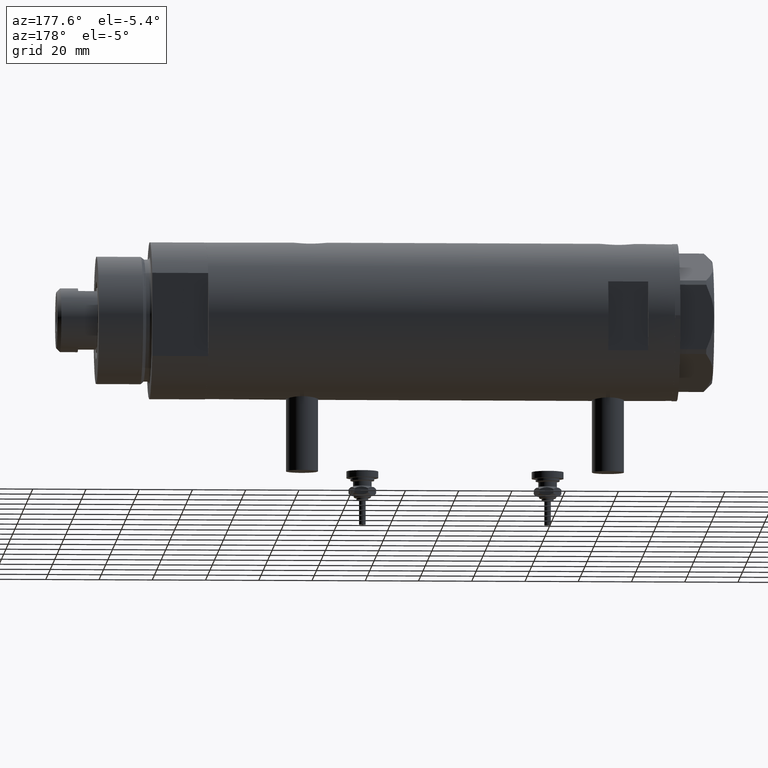
[diagram: clean part render]
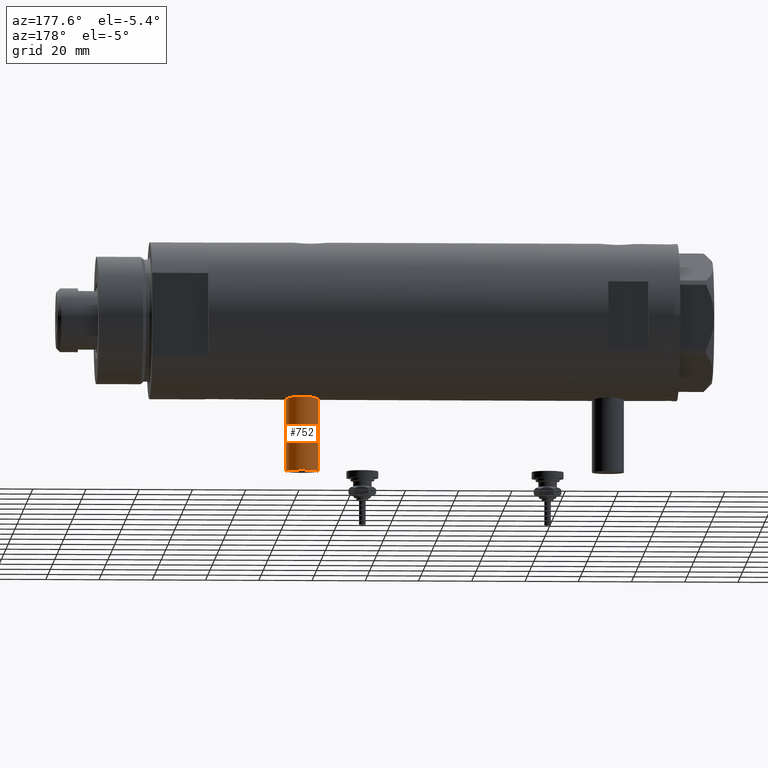
[diagram: same view with one face highlighted and labeled with its STEP entity id]
A machine part, auxiliary view. The second image highlights one B-rep face of the part: STEP entity #752.
In plain terms, the highlighted cylindrical surface (edge-blend (fillet) strip) has radius 6 mm, axis along (0, 0, 1).
Its self-contained STEP definition (entity closure, byte-faithful):
#12 = DIRECTION ( 'NONE',  ( 1.000000000000000000, -0.000000000000000000, -0.000000000000000000 ) ) ;
#195 = CARTESIAN_POINT ( 'NONE',  ( -28.30000000000000071, 7.347880794884119736E-16, -45.29999999999999005 ) ) ;
#443 = CARTESIAN_POINT ( 'NONE',  ( -56.60000000000000142, 0.000000000000000000, -51.29999999999999716 ) ) ;
#530 = CARTESIAN_POINT ( 'NONE',  ( -56.60000000000000142, 0.000000000000000000, -51.29999999999999716 ) ) ;
#545 = AXIS2_PLACEMENT_3D ( 'NONE', #443, #1755, #3621 ) ;
#589 = DIRECTION ( 'NONE',  ( -1.000000000000000000, 0.000000000000000000, 0.000000000000000000 ) ) ;
#636 = EDGE_LOOP ( 'NONE', ( #4714, #3597, #3463, #3474 ) ) ;
#752 = ADVANCED_FACE ( 'NONE', ( #1361 ), #4194, .T. ) ;
#878 = CARTESIAN_POINT ( 'NONE',  ( -56.60000000000000142, 0.000000000000000000, -57.30000000000000426 ) ) ;
#886 = DIRECTION ( 'NONE',  ( 0.000000000000000000, 0.000000000000000000, -1.000000000000000000 ) ) ;
#1117 = CARTESIAN_POINT ( 'NONE',  ( -28.30000000000000071, 0.000000000000000000, -57.30000000000000426 ) ) ;
#1361 = FACE_OUTER_BOUND ( 'NONE', #636, .T. ) ;
#1379 = DIRECTION ( 'NONE',  ( 1.000000000000000000, -0.000000000000000000, -0.000000000000000000 ) ) ;
#1432 = VERTEX_POINT ( 'NONE', #5374 ) ;
#1446 = LINE ( 'NONE', #3641, #4109 ) ;
#1755 = DIRECTION ( 'NONE',  ( -1.000000000000000000, 0.000000000000000000, 0.000000000000000000 ) ) ;
#2258 = CARTESIAN_POINT ( 'NONE',  ( -56.60000000000000142, 0.000000000000000000, -57.30000000000000426 ) ) ;
#2361 = EDGE_CURVE ( 'NONE', #4700, #4296, #4844, .T. ) ;
#2713 = AXIS2_PLACEMENT_3D ( 'NONE', #530, #12, #886 ) ;
#2962 = VECTOR ( 'NONE', #4068, 1000.000000000000000 ) ;
#3401 = CARTESIAN_POINT ( 'NONE',  ( -28.30000000000000071, 0.000000000000000000, -51.29999999999999716 ) ) ;
#3463 = ORIENTED_EDGE ( 'NONE', *, *, #2361, .T. ) ;
#3474 = ORIENTED_EDGE ( 'NONE', *, *, #4815, .F. ) ;
#3531 = EDGE_CURVE ( 'NONE', #1432, #3854, #5333, .T. ) ;
#3597 = ORIENTED_EDGE ( 'NONE', *, *, #4948, .T. ) ;
#3621 = DIRECTION ( 'NONE',  ( 0.000000000000000000, 0.000000000000000000, 1.000000000000000000 ) ) ;
#3641 = CARTESIAN_POINT ( 'NONE',  ( -56.60000000000000142, 7.347880794884122694E-16, -45.29999999999999005 ) ) ;
#3853 = DIRECTION ( 'NONE',  ( 0.000000000000000000, 0.000000000000000000, 1.000000000000000000 ) ) ;
#3854 = VERTEX_POINT ( 'NONE', #2258 ) ;
#4068 = DIRECTION ( 'NONE',  ( 1.000000000000000000, -0.000000000000000000, -0.000000000000000000 ) ) ;
#4109 = VECTOR ( 'NONE', #1379, 1000.000000000000000 ) ;
#4194 = CYLINDRICAL_SURFACE ( 'NONE', #2713, 6.000000000000005329 ) ;
#4296 = VERTEX_POINT ( 'NONE', #1117 ) ;
#4700 = VERTEX_POINT ( 'NONE', #195 ) ;
#4714 = ORIENTED_EDGE ( 'NONE', *, *, #3531, .F. ) ;
#4815 = EDGE_CURVE ( 'NONE', #3854, #4296, #5349, .T. ) ;
#4844 = CIRCLE ( 'NONE', #5890, 6.000000000000005329 ) ;
#4948 = EDGE_CURVE ( 'NONE', #1432, #4700, #1446, .T. ) ;
#5333 = CIRCLE ( 'NONE', #545, 6.000000000000005329 ) ;
#5349 = LINE ( 'NONE', #878, #2962 ) ;
#5374 = CARTESIAN_POINT ( 'NONE',  ( -56.60000000000000142, 7.347880794884119736E-16, -45.29999999999999005 ) ) ;
#5890 = AXIS2_PLACEMENT_3D ( 'NONE', #3401, #589, #3853 ) ;